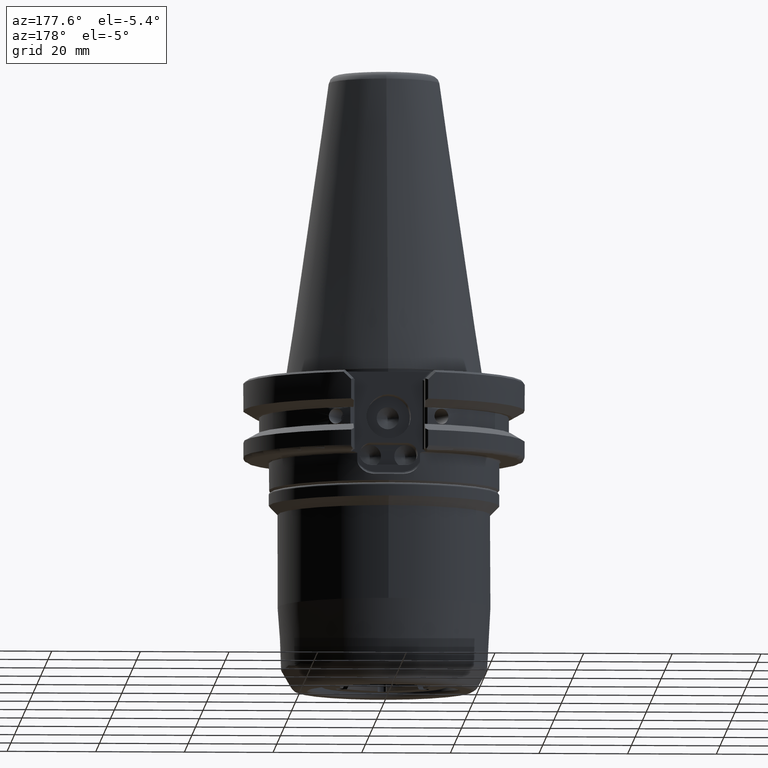
[diagram: clean part render]
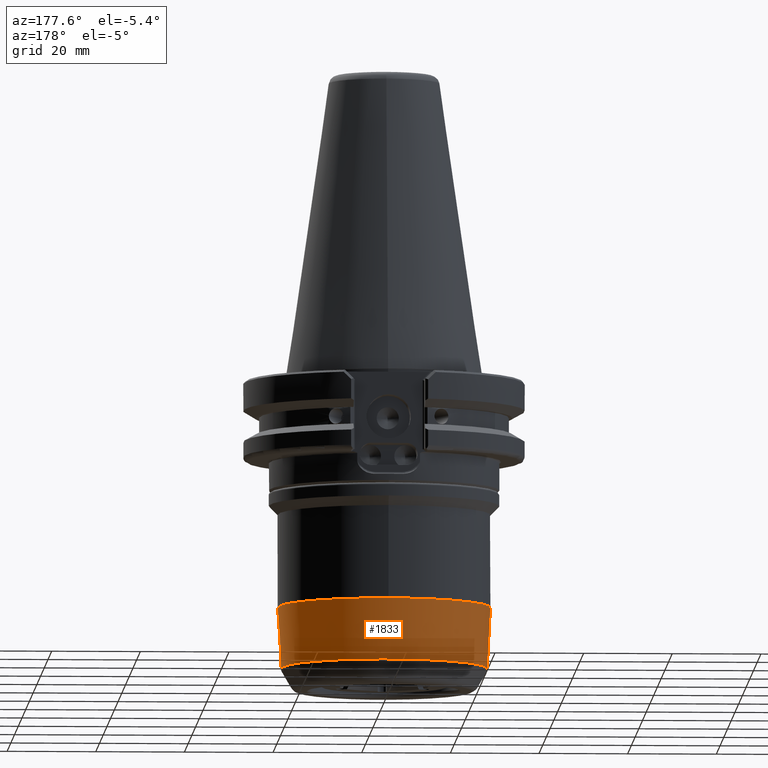
[diagram: same view with one face highlighted and labeled with its STEP entity id]
A machine part, auxiliary view. The second image highlights one B-rep face of the part: STEP entity #1833.
In plain terms, the highlighted conical surface has half-angle 3 deg.
Its self-contained STEP definition (entity closure, byte-faithful):
#173 = EDGE_CURVE ( 'NONE', #637, #637, #5895, .T. ) ;
#318 = DIRECTION ( 'NONE',  ( 3.491481338843133355E-15, 0.000000000000000000, 1.000000000000000000 ) ) ;
#460 = DIRECTION ( 'NONE',  ( -1.000000000000000000, -1.224646799149999836E-16, 3.576842480568724837E-15 ) ) ;
#637 = VERTEX_POINT ( 'NONE', #5176 ) ;
#704 = AXIS2_PLACEMENT_3D ( 'NONE', #4584, #318, #460 ) ;
#763 = DIRECTION ( 'NONE',  ( 2.517936179295973301E-14, -2.190282575960714978E-14, 1.000000000000000000 ) ) ;
#953 = EDGE_CURVE ( 'NONE', #2065, #2065, #5220, .T. ) ;
#1031 = FACE_BOUND ( 'NONE', #1940, .T. ) ;
#1266 = EDGE_LOOP ( 'NONE', ( #4326 ) ) ;
#1342 = ORIENTED_EDGE ( 'NONE', *, *, #173, .T. ) ;
#1613 = DIRECTION ( 'NONE',  ( 0.2938119377117189290, -0.9558632461069339614, -2.852643724618723511E-14 ) ) ;
#1833 = ADVANCED_FACE ( 'NONE', ( #5155, #1031 ), #5415, .T. ) ;
#1940 = EDGE_LOOP ( 'NONE', ( #1342 ) ) ;
#2065 = VERTEX_POINT ( 'NONE', #4261 ) ;
#2177 = AXIS2_PLACEMENT_3D ( 'NONE', #4449, #763, #1613 ) ;
#2557 = DIRECTION ( 'NONE',  ( 3.491481338843133355E-15, 0.000000000000000000, 1.000000000000000000 ) ) ;
#2620 = DIRECTION ( 'NONE',  ( 1.224646799150000575E-16, 1.000000000000000000, 0.000000000000000000 ) ) ;
#3158 = CARTESIAN_POINT ( 'NONE',  ( -1.819061777537272415E-13, 0.000000000000000000, -52.10000000000000142 ) ) ;
#4261 = CARTESIAN_POINT ( 'NONE',  ( -1.789670254357672618E-13, 24.00000000000000000, -52.10000000000000142 ) ) ;
#4326 = ORIENTED_EDGE ( 'NONE', *, *, #953, .F. ) ;
#4449 = CARTESIAN_POINT ( 'NONE',  ( 5.564838324542553760E-13, -5.031530747601210249E-12, -64.47497638822939336 ) ) ;
#4584 = CARTESIAN_POINT ( 'NONE',  ( -2.299139545627599496E-13, 0.000000000000000000, -65.84997376469999608 ) ) ;
#4738 = AXIS2_PLACEMENT_3D ( 'NONE', #3158, #2557, #2620 ) ;
#5155 = FACE_OUTER_BOUND ( 'NONE', #1266, .T. ) ;
#5176 = CARTESIAN_POINT ( 'NONE',  ( -23.27939440980022923, -2.850903585011197077E-15, -65.84997376469991082 ) ) ;
#5220 = CIRCLE ( 'NONE', #4738, 24.00000000000000000 ) ;
#5415 = CONICAL_SURFACE ( 'NONE', #2177, 23.35145496881590432, 0.05235987755923034170 ) ;
#5895 = CIRCLE ( 'NONE', #704, 23.27939440980000185 ) ;